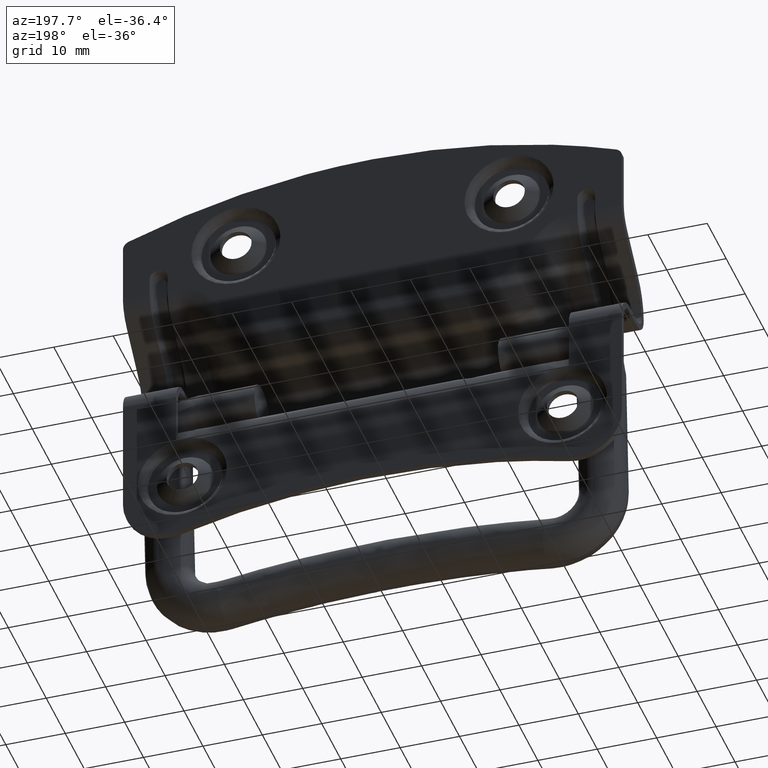
[diagram: clean part render]
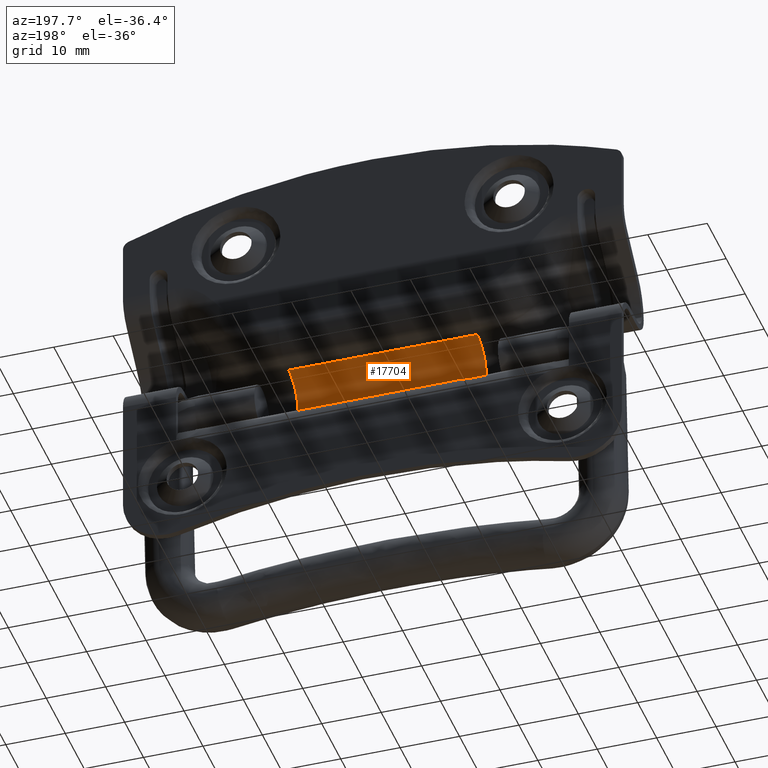
[diagram: same view with one face highlighted and labeled with its STEP entity id]
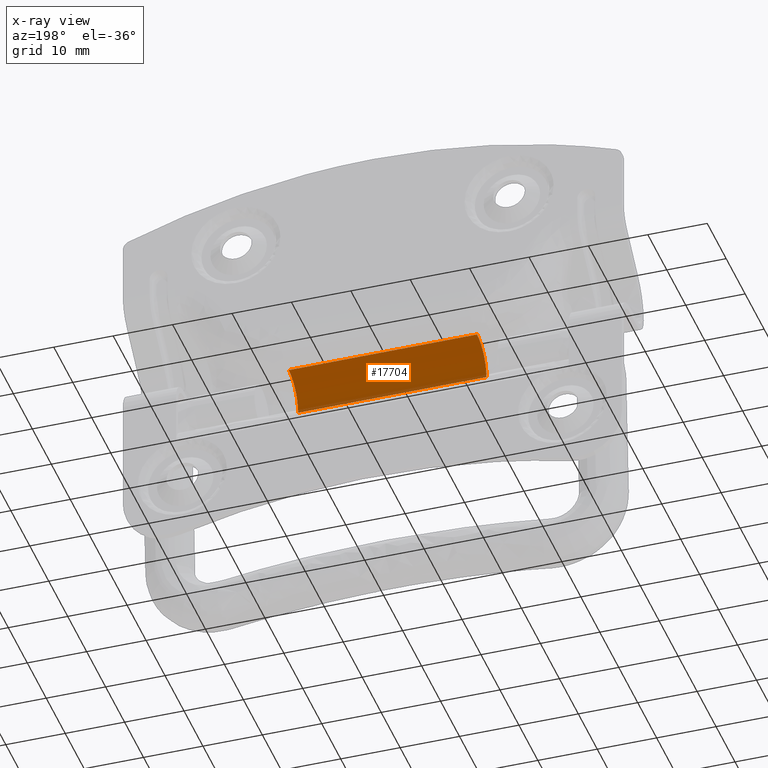
[diagram: x-ray of the same camera — body ghosted, the highlighted face saturated]
A machine part, auxiliary view. The second image highlights one B-rep face of the part: STEP entity #17704.
The next image is the same camera in x-ray: the body ghosted, the highlighted face saturated — about 4% of this face is hidden behind the body in this view.
In plain terms, the highlighted face is a freeform B-spline surface patch.
Its self-contained STEP definition (entity closure, byte-faithful):
#17616=CARTESIAN_POINT('',(15.850297819041700,-4.564100000000000,1.400000000000000));
#17617=VERTEX_POINT('',#17616);
#17618=CARTESIAN_POINT('',(15.850297819041700,0.435900000000000,6.400000000000000));
#17619=VERTEX_POINT('',#17618);
#17620=CARTESIAN_POINT('',(15.850297819041700,-4.564100000000000,1.400000000000000));
#17621=CARTESIAN_POINT('',(15.850297819041719,-4.564096910525619,1.686336919457068));
#17622=CARTESIAN_POINT('',(15.850297819041680,-4.497309341631420,2.463599580226078));
#17623=CARTESIAN_POINT('',(15.850297819041710,-4.147191669689602,3.523724858906300));
#17624=CARTESIAN_POINT('',(15.850297819041710,-3.575167251835002,4.426513903196510));
#17625=CARTESIAN_POINT('',(15.850297819041710,-2.969198876508559,5.095134442913854));
#17626=CARTESIAN_POINT('',(15.850297819041669,-2.191569590491943,5.702143792908329));
#17627=CARTESIAN_POINT('',(15.850297819041749,-1.036566522228317,6.248420328895490));
#17628=CARTESIAN_POINT('',(15.850297819041661,-0.095914078617487,6.400308335356616));
#17629=CARTESIAN_POINT('',(15.850297819041700,0.435900000000000,6.400000000000000));
#17630=B_SPLINE_CURVE_WITH_KNOTS('',3,(#17620,#17621,#17622,#17623,#17624,#17625,#17626,#17627,#17628,#17629),.UNSPECIFIED.,.F.,.U.,(4,1,1,1,1,1,1,4),(0.000000097571997,0.859050259611723,2.331713670065912,3.313498685249241,4.049804708065007,5.031574300430060,6.258800744957000,7.854178721672732),.UNSPECIFIED.);
#17631=EDGE_CURVE('',#17617,#17619,#17630,.T.);
#17660=CARTESIAN_POINT('',(-16.642703048067101,-4.563909615320855,1.356367322508135));
#17661=CARTESIAN_POINT('',(16.662622840719429,-4.563909615320855,1.356367322508135));
#17662=CARTESIAN_POINT('',(-16.642703048067094,-4.610699933397730,6.718006710058759));
#17663=CARTESIAN_POINT('',(16.662622840719436,-4.610699933397730,6.718006710058759));
#17664=CARTESIAN_POINT('',(-16.642703048067101,0.741142697674284,6.390673992109333));
#17665=CARTESIAN_POINT('',(16.662622840719429,0.741142697674284,6.390673992109333));
#17673=(BOUNDED_SURFACE()B_SPLINE_SURFACE(1,2,((#17660,#17662,#17664),(#17661,#17663,#17665)),.UNSPECIFIED.,.F.,.F.,.U.)B_SPLINE_SURFACE_WITH_KNOTS((2,2),(3,3),(0.0,33.305325888786527),(0.0,8.696247499218663),.UNSPECIFIED.)GEOMETRIC_REPRESENTATION_ITEM()RATIONAL_B_SPLINE_SURFACE(((1.0,0.681998360062499,1.0),(1.0,0.681998360062499,1.0)))REPRESENTATION_ITEM('')SURFACE());
#17674=CARTESIAN_POINT('',(-15.850190831796150,-4.564100000000000,1.400000000000000));
#17675=VERTEX_POINT('',#17674);
#17676=CARTESIAN_POINT('',(-15.850190831796150,0.435900000000044,6.400000000000000));
#17677=VERTEX_POINT('',#17676);
#17678=CARTESIAN_POINT('',(-15.850190831796150,-4.564100000000000,1.400000000000000));
#17679=CARTESIAN_POINT('',(-15.850190831796141,-4.564675912058133,2.013697309503374));
#17680=CARTESIAN_POINT('',(-15.850190831796169,-4.388619131123284,2.954091259808104));
#17681=CARTESIAN_POINT('',(-15.850190831796130,-3.815581764081280,4.092243581487116));
#17682=CARTESIAN_POINT('',(-15.850190831796180,-3.208686452836953,4.869929047979669));
#17683=CARTESIAN_POINT('',(-15.850190831796150,-2.461701942295379,5.514282304572476));
#17684=CARTESIAN_POINT('',(-15.850190831796169,-1.567619946959723,6.020815220802164));
#17685=CARTESIAN_POINT('',(-15.850190831796080,-0.586746282819576,6.331510610096931));
#17686=CARTESIAN_POINT('',(-15.850190831796271,0.108655247621921,6.400037691572940));
#17687=CARTESIAN_POINT('',(-15.850190831796150,0.435900000000044,6.400000000000000));
#17688=B_SPLINE_CURVE_WITH_KNOTS('',3,(#17678,#17679,#17680,#17681,#17682,#17683,#17684,#17685,#17686,#17687),.UNSPECIFIED.,.F.,.U.,(4,1,1,1,1,1,1,4),(0.000000097572028,1.840822441915427,2.822607799273025,3.804374936301828,4.786127827325792,5.767912282453477,6.872417178969750,7.854178721672757),.UNSPECIFIED.);
#17689=EDGE_CURVE('',#17675,#17677,#17688,.T.);
#17690=ORIENTED_EDGE('',*,*,#17689,.T.);
#17691=CARTESIAN_POINT('',(15.850297819041700,0.435900000000000,6.400000000000000));
#17692=CARTESIAN_POINT('',(-15.850190831796150,0.435900000000044,6.400000000000000));
#17693=QUASI_UNIFORM_CURVE('',1,(#17691,#17692),.UNSPECIFIED.,.F.,.U.);
#17694=EDGE_CURVE('',#17619,#17677,#17693,.T.);
#17695=ORIENTED_EDGE('',*,*,#17694,.F.);
#17696=ORIENTED_EDGE('',*,*,#17631,.F.);
#17697=CARTESIAN_POINT('',(-15.850190831796150,-4.564100000000000,1.400000000000000));
#17698=CARTESIAN_POINT('',(15.850297819041700,-4.564100000000000,1.400000000000000));
#17699=QUASI_UNIFORM_CURVE('',1,(#17697,#17698),.UNSPECIFIED.,.F.,.U.);
#17700=EDGE_CURVE('',#17675,#17617,#17699,.T.);
#17701=ORIENTED_EDGE('',*,*,#17700,.F.);
#17702=EDGE_LOOP('',(#17690,#17695,#17696,#17701));
#17703=FACE_OUTER_BOUND('',#17702,.T.);
#17704=ADVANCED_FACE('',(#17703),#17673,.F.);